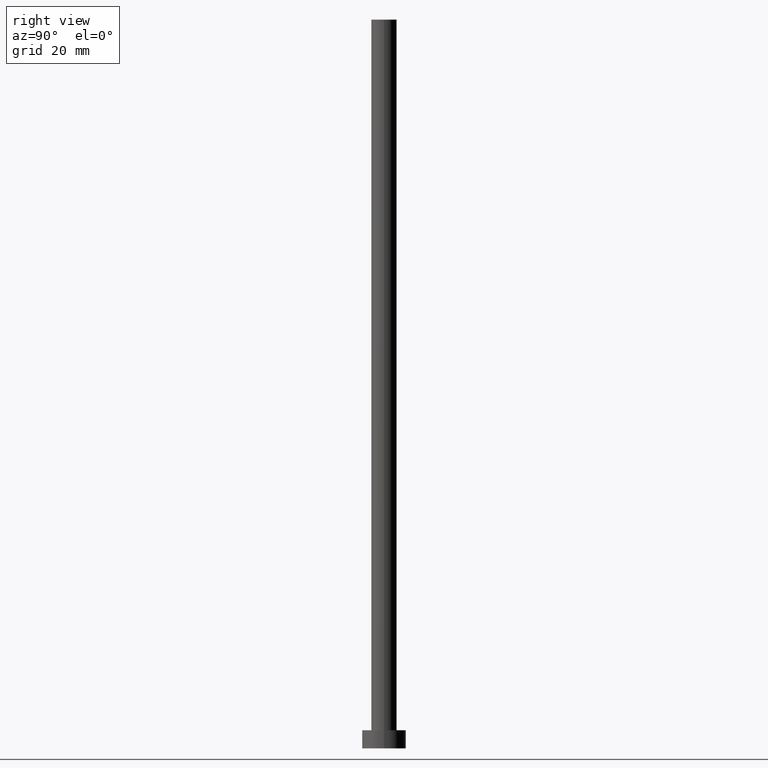
[diagram: clean part render]
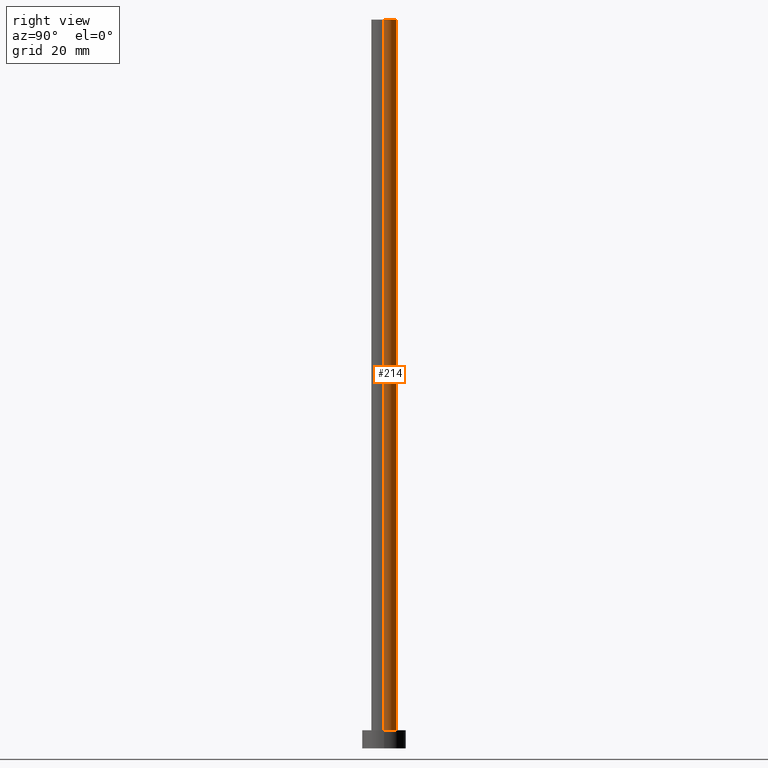
[diagram: same view with one face highlighted and labeled with its STEP entity id]
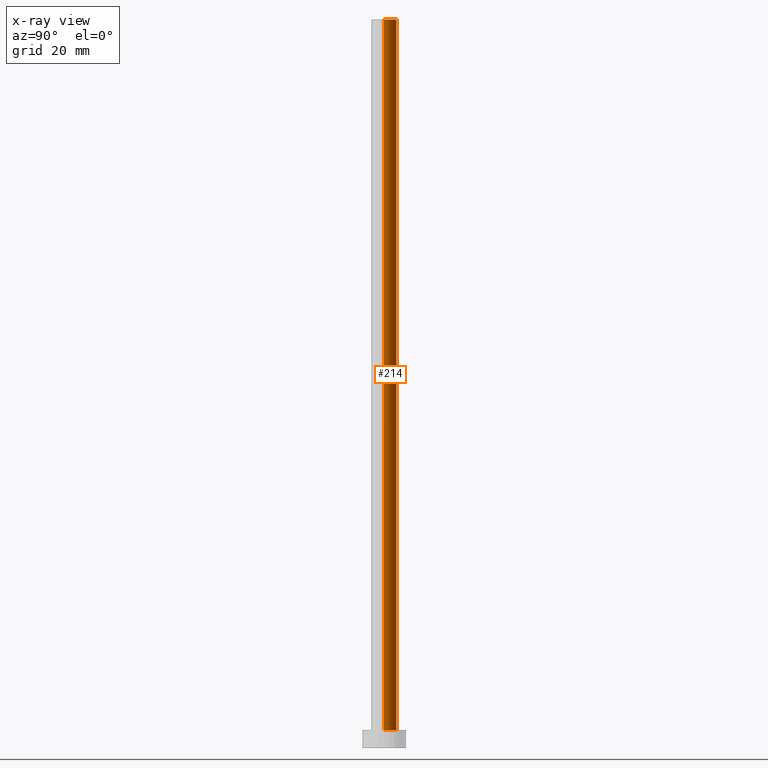
[diagram: x-ray of the same camera — body ghosted, the highlighted face saturated]
A machine part, right view. The second image highlights one B-rep face of the part: STEP entity #214.
The next image is the same camera in x-ray: the body ghosted, the highlighted face saturated — about 0% of this face is hidden behind the body in this view.
In plain terms, the highlighted cylindrical surface (edge-blend (fillet) strip) has radius 3.5 mm, axis along (-0, -0, -1).
Its self-contained STEP definition (entity closure, byte-faithful):
#4 = LINE ( 'NONE', #201, #145 ) ;
#9 = DIRECTION ( 'NONE',  ( -0.000000000000000000, -0.000000000000000000, -1.000000000000000000 ) ) ;
#19 = ORIENTED_EDGE ( 'NONE', *, *, #230, .F. ) ;
#25 = DIRECTION ( 'NONE',  ( -0.000000000000000000, -0.000000000000000000, -1.000000000000000000 ) ) ;
#30 = CYLINDRICAL_SURFACE ( 'NONE', #85, 3.500000000000000000 ) ;
#31 = CARTESIAN_POINT ( 'NONE',  ( -3.500000000000000000, 0.000000000000000000, 200.0000000000000000 ) ) ;
#35 = DIRECTION ( 'NONE',  ( -0.000000000000000000, -0.000000000000000000, -1.000000000000000000 ) ) ;
#42 = ORIENTED_EDGE ( 'NONE', *, *, #251, .F. ) ;
#47 = CARTESIAN_POINT ( 'NONE',  ( 3.500000000000000000, 4.286263797015736595E-16, 200.0000000000000000 ) ) ;
#65 = VERTEX_POINT ( 'NONE', #113 ) ;
#68 = DIRECTION ( 'NONE',  ( 1.000000000000000000, 0.000000000000000000, 0.000000000000000000 ) ) ;
#71 = DIRECTION ( 'NONE',  ( -1.000000000000000000, 0.000000000000000000, 0.000000000000000000 ) ) ;
#72 = CARTESIAN_POINT ( 'NONE',  ( 0.000000000000000000, 0.000000000000000000, 200.0000000000000000 ) ) ;
#75 = CARTESIAN_POINT ( 'NONE',  ( -3.500000000000000000, 0.000000000000000000, 200.0000000000000000 ) ) ;
#81 = EDGE_CURVE ( 'NONE', #147, #163, #4, .T. ) ;
#85 = AXIS2_PLACEMENT_3D ( 'NONE', #72, #35, #71 ) ;
#87 = CARTESIAN_POINT ( 'NONE',  ( 0.000000000000000000, 0.000000000000000000, 5.000000000000000000 ) ) ;
#88 = CARTESIAN_POINT ( 'NONE',  ( 0.000000000000000000, 0.000000000000000000, 200.0000000000000000 ) ) ;
#99 = EDGE_LOOP ( 'NONE', ( #19, #200, #183, #42 ) ) ;
#113 = CARTESIAN_POINT ( 'NONE',  ( -3.500000000000000000, 0.000000000000000000, 5.000000000000000000 ) ) ;
#128 = CARTESIAN_POINT ( 'NONE',  ( 3.500000000000000000, 4.286263797015736595E-16, 5.000000000000000000 ) ) ;
#131 = FACE_OUTER_BOUND ( 'NONE', #99, .T. ) ;
#133 = CIRCLE ( 'NONE', #142, 3.500000000000000000 ) ;
#142 = AXIS2_PLACEMENT_3D ( 'NONE', #87, #240, #68 ) ;
#145 = VECTOR ( 'NONE', #25, 1000.000000000000000 ) ;
#147 = VERTEX_POINT ( 'NONE', #47 ) ;
#156 = LINE ( 'NONE', #31, #253 ) ;
#159 = CIRCLE ( 'NONE', #217, 3.500000000000000000 ) ;
#163 = VERTEX_POINT ( 'NONE', #128 ) ;
#183 = ORIENTED_EDGE ( 'NONE', *, *, #197, .T. ) ;
#197 = EDGE_CURVE ( 'NONE', #163, #65, #133, .T. ) ;
#200 = ORIENTED_EDGE ( 'NONE', *, *, #81, .T. ) ;
#201 = CARTESIAN_POINT ( 'NONE',  ( 3.500000000000000000, 4.286263797015736595E-16, 200.0000000000000000 ) ) ;
#214 = ADVANCED_FACE ( 'NONE', ( #131 ), #30, .T. ) ;
#217 = AXIS2_PLACEMENT_3D ( 'NONE', #88, #242, #227 ) ;
#227 = DIRECTION ( 'NONE',  ( 1.000000000000000000, 0.000000000000000000, 0.000000000000000000 ) ) ;
#230 = EDGE_CURVE ( 'NONE', #147, #233, #159, .T. ) ;
#233 = VERTEX_POINT ( 'NONE', #75 ) ;
#240 = DIRECTION ( 'NONE',  ( 0.000000000000000000, 0.000000000000000000, 1.000000000000000000 ) ) ;
#242 = DIRECTION ( 'NONE',  ( 0.000000000000000000, 0.000000000000000000, 1.000000000000000000 ) ) ;
#251 = EDGE_CURVE ( 'NONE', #233, #65, #156, .T. ) ;
#253 = VECTOR ( 'NONE', #9, 1000.000000000000000 ) ;